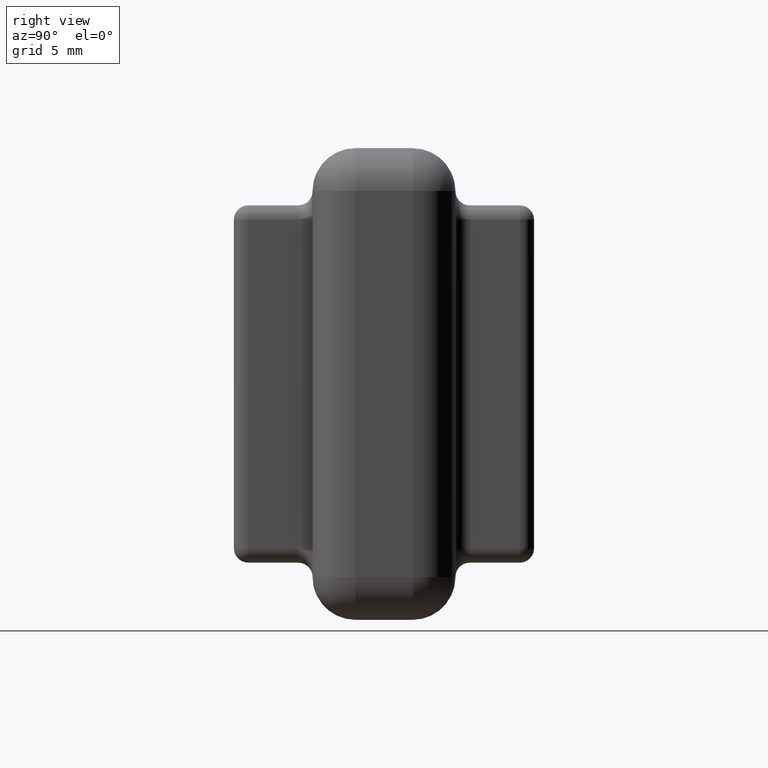
[diagram: clean part render]
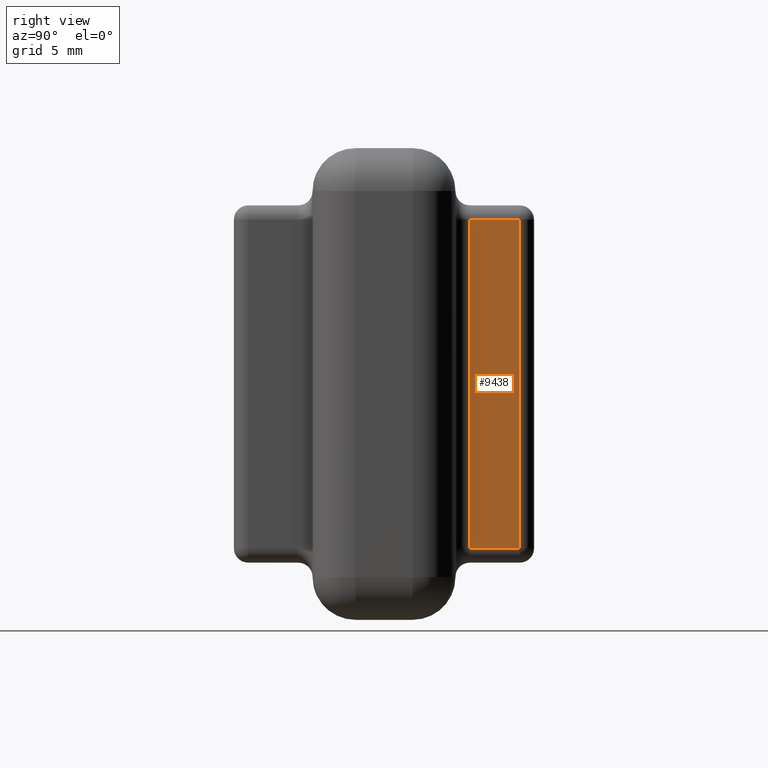
[diagram: same view with one face highlighted and labeled with its STEP entity id]
A machine part, right view. The second image highlights one B-rep face of the part: STEP entity #9438.
In plain terms, the highlighted planar face has unit normal (-1, 0, 0).
Its self-contained STEP definition (entity closure, byte-faithful):
#15 = DIRECTION ( 'NONE',  ( -1.000000000000000000, 0.0000000000000000000, 2.081668171172168500E-016 ) ) ;
#110 = LINE ( 'NONE', #418, #4375 ) ;
#418 = CARTESIAN_POINT ( 'NONE',  ( 12.49999999999999800, 10.49999999999999800, -11.50000000000000000 ) ) ;
#648 = ORIENTED_EDGE ( 'NONE', *, *, #753, .T. ) ;
#753 = EDGE_CURVE ( 'NONE', #9664, #6204, #110, .T. ) ;
#1225 = ORIENTED_EDGE ( 'NONE', *, *, #8813, .T. ) ;
#1787 = AXIS2_PLACEMENT_3D ( 'NONE', #3442, #15, #9609 ) ;
#2090 = EDGE_CURVE ( 'NONE', #10252, #9876, #9825, .T. ) ;
#2180 = CARTESIAN_POINT ( 'NONE',  ( 12.49999999999999800, 6.000000000000000000, -12.49999999999999800 ) ) ;
#2488 = LINE ( 'NONE', #2180, #6625 ) ;
#2572 = PLANE ( 'NONE',  #1787 ) ;
#3404 = DIRECTION ( 'NONE',  ( 0.0000000000000000000, -1.000000000000000000, 0.0000000000000000000 ) ) ;
#3442 = CARTESIAN_POINT ( 'NONE',  ( 12.49999999999999800, 10.49999999999999800, -12.49999999999999800 ) ) ;
#3451 = ORIENTED_EDGE ( 'NONE', *, *, #2090, .T. ) ;
#3735 = VECTOR ( 'NONE', #5176, 1000.000000000000000 ) ;
#3900 = ORIENTED_EDGE ( 'NONE', *, *, #9119, .T. ) ;
#3963 = DIRECTION ( 'NONE',  ( -2.081668171172168500E-016, 0.0000000000000000000, -1.000000000000000000 ) ) ;
#4288 = CARTESIAN_POINT ( 'NONE',  ( 12.50000000000000400, 9.499999999999998200, 12.50000000000000200 ) ) ;
#4375 = VECTOR ( 'NONE', #4917, 1000.000000000000000 ) ;
#4917 = DIRECTION ( 'NONE',  ( -0.0000000000000000000, 1.000000000000000000, -0.0000000000000000000 ) ) ;
#5176 = DIRECTION ( 'NONE',  ( 2.081668171172168500E-016, -0.0000000000000000000, 1.000000000000000000 ) ) ;
#5430 = VECTOR ( 'NONE', #3404, 1000.000000000000000 ) ;
#5970 = CARTESIAN_POINT ( 'NONE',  ( 12.49999999999999800, 6.000000000000000000, -11.50000000000000000 ) ) ;
#6090 = LINE ( 'NONE', #4288, #3735 ) ;
#6202 = CARTESIAN_POINT ( 'NONE',  ( 12.49999999999999800, 9.499999999999998200, -11.50000000000000000 ) ) ;
#6204 = VERTEX_POINT ( 'NONE', #6202 ) ;
#6265 = CARTESIAN_POINT ( 'NONE',  ( 12.50000000000000400, 6.000000000000000000, 11.50000000000000200 ) ) ;
#6625 = VECTOR ( 'NONE', #3963, 1000.000000000000000 ) ;
#6757 = CARTESIAN_POINT ( 'NONE',  ( 12.50000000000000400, 10.49999999999999800, 11.50000000000000200 ) ) ;
#7255 = EDGE_LOOP ( 'NONE', ( #1225, #3451, #3900, #648 ) ) ;
#8000 = FACE_OUTER_BOUND ( 'NONE', #7255, .T. ) ;
#8754 = CARTESIAN_POINT ( 'NONE',  ( 12.50000000000000400, 9.499999999999998200, 11.50000000000000200 ) ) ;
#8813 = EDGE_CURVE ( 'NONE', #6204, #10252, #6090, .T. ) ;
#9119 = EDGE_CURVE ( 'NONE', #9876, #9664, #2488, .T. ) ;
#9438 = ADVANCED_FACE ( 'NONE', ( #8000 ), #2572, .F. ) ;
#9609 = DIRECTION ( 'NONE',  ( 2.081668171172168500E-016, 0.0000000000000000000, 1.000000000000000000 ) ) ;
#9664 = VERTEX_POINT ( 'NONE', #5970 ) ;
#9825 = LINE ( 'NONE', #6757, #5430 ) ;
#9876 = VERTEX_POINT ( 'NONE', #6265 ) ;
#10252 = VERTEX_POINT ( 'NONE', #8754 ) ;